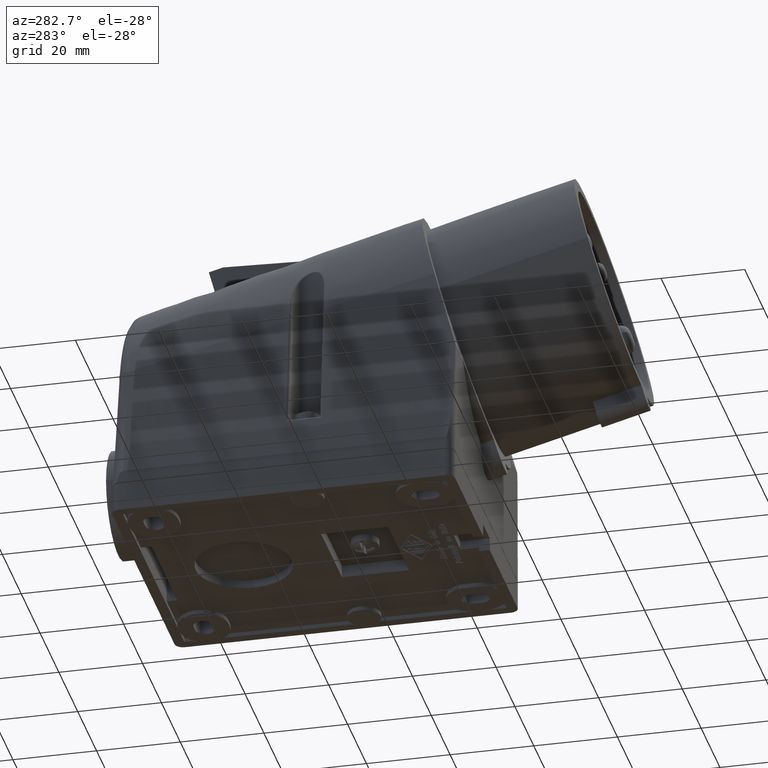
[diagram: clean part render]
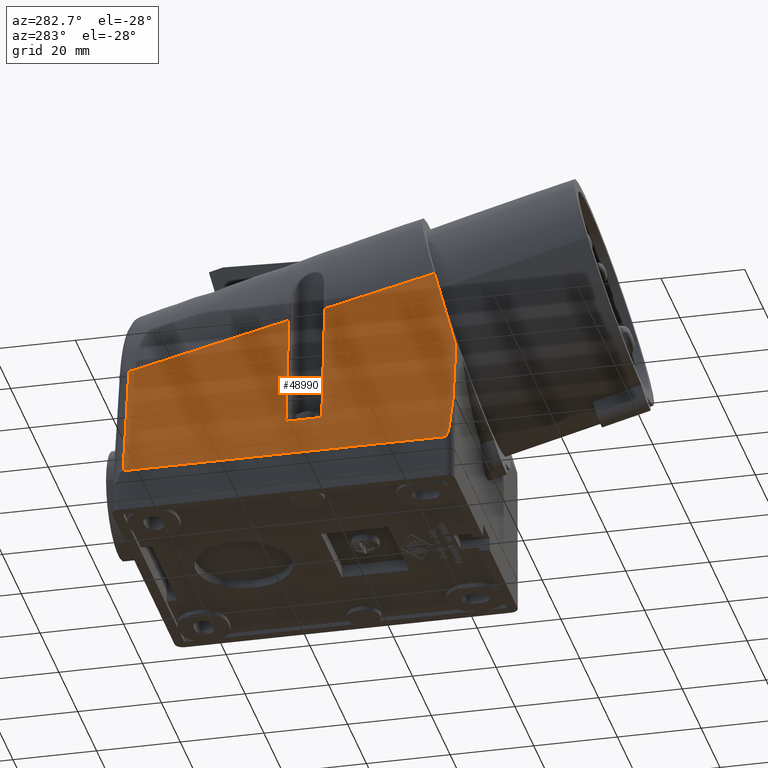
[diagram: same view with one face highlighted and labeled with its STEP entity id]
A machine part, auxiliary view. The second image highlights one B-rep face of the part: STEP entity #48990.
In plain terms, the highlighted face is a freeform B-spline surface patch.
Its self-contained STEP definition (entity closure, byte-faithful):
#13010=CARTESIAN_POINT('',(13.1169484670929,75.1429508882732,
48.6516298899985));
#13020=VERTEX_POINT('',#13010);
#13470=CARTESIAN_POINT('',(11.2818153625312,69.6903855437498,
28.3023789926475));
#13480=VERTEX_POINT('',#13470);
#13510=CARTESIAN_POINT('',(9.,62.9106335260837,3.));
#13520=CARTESIAN_POINT('',(10.0292371167732,65.9687128666311,
14.4129074724996));
#13530=CARTESIAN_POINT('',(11.0584742335465,69.0267922071784,
25.8258149449992));
#13540=CARTESIAN_POINT('',(12.0877113503197,72.0848715477258,
37.2387224174988));
#13550=CARTESIAN_POINT('',(13.1169484670929,75.1429508882732,
48.6516298899985));
#13560=(BOUNDED_CURVE() B_SPLINE_CURVE(4,(#13510,#13520,#13530,#13540,
#13550),.UNSPECIFIED.,.F.,.F.) B_SPLINE_CURVE_WITH_KNOTS((5,5),(70.,
117.441017741438),.UNSPECIFIED.) CURVE() GEOMETRIC_REPRESENTATION_ITEM()
 RATIONAL_B_SPLINE_CURVE((1.,1.,1.,1.,1.)) REPRESENTATION_ITEM(''));
#13570=EDGE_CURVE('',#13480,#13020,#13560,.T.);
#20510=CARTESIAN_POINT('',(13.1169484670929,75.1429508882732,
48.6516298899985));
#20520=CARTESIAN_POINT('',(13.2117672415879,99.9920957734321,
42.7809359734625));
#20530=CARTESIAN_POINT('',(13.3065860160829,124.841240658591,
36.9102420569265));
#20540=CARTESIAN_POINT('',(13.4014047905778,149.69038554375,
31.0395481403905));
#20550=(BOUNDED_CURVE() B_SPLINE_CURVE(3,(#20510,#20520,#20530,#20540),
.UNSPECIFIED.,.F.,.F.) B_SPLINE_CURVE_WITH_KNOTS((4,4),(1.,
77.1115129853379),.UNSPECIFIED.) CURVE() GEOMETRIC_REPRESENTATION_ITEM()
 RATIONAL_B_SPLINE_CURVE((1.,1.,1.,1.)) REPRESENTATION_ITEM(''));
#20560=CARTESIAN_POINT('',(13.2171575043675,101.404721295028,
42.4471984507306));
#20570=VERTEX_POINT('',#20560);
#20580=EDGE_CURVE('',#13020,#20570,#20550,.T.);
#23090=CARTESIAN_POINT('',(13.2499766037204,110.005618735077,
40.4152075507861));
#23100=VERTEX_POINT('',#23090);
#23130=CARTESIAN_POINT('',(13.1169484670929,75.1429508882732,
48.6516298899984));
#23140=CARTESIAN_POINT('',(13.2117672415879,99.9920957734321,
42.7809359734625));
#23150=CARTESIAN_POINT('',(13.3065860160829,124.841240658591,
36.9102420569265));
#23160=CARTESIAN_POINT('',(13.4014047905778,149.69038554375,
31.0395481403905));
#23170=(BOUNDED_CURVE() B_SPLINE_CURVE(3,(#23130,#23140,#23150,#23160),
.UNSPECIFIED.,.F.,.F.) B_SPLINE_CURVE_WITH_KNOTS((4,4),(1.,
77.1115129853379),.UNSPECIFIED.) CURVE() GEOMETRIC_REPRESENTATION_ITEM()
 RATIONAL_B_SPLINE_CURVE((1.,1.,1.,1.)) REPRESENTATION_ITEM(''));
#23180=CARTESIAN_POINT('',(13.3959867161082,148.270471415851,
31.3750076208347));
#23190=VERTEX_POINT('',#23180);
#23200=EDGE_CURVE('',#23100,#23190,#23170,.T.);
#44120=CARTESIAN_POINT('',(168.046432553668,69.6903855437498,
11.9469414497903));
#44130=DIRECTION('',(0.,1.,-0.));
#44140=DIRECTION('',(-1.,0.,0.));
#44150=AXIS2_PLACEMENT_3D('',#44120,#44130,#44140);
#44160=PLANE('',#44150);
#45360=CARTESIAN_POINT('',(9.,62.9106335260837,3.));
#45370=CARTESIAN_POINT('',(10.0292371167732,65.9687128666311,
14.4129074724996));
#45380=CARTESIAN_POINT('',(11.0584742335465,69.0267922071784,
25.8258149449992));
#45390=CARTESIAN_POINT('',(12.0877113503197,72.0848715477258,
37.2387224174988));
#45400=CARTESIAN_POINT('',(13.1169484670929,75.1429508882732,
48.6516298899984));
#45410=CARTESIAN_POINT('',(9.,91.8372175319723,3.));
#45420=CARTESIAN_POINT('',(10.052941810397,93.8759370923373,
12.9452339933656));
#45430=CARTESIAN_POINT('',(11.105883620794,95.9146566527022,
22.8904679867312));
#45440=CARTESIAN_POINT('',(12.1588254311909,97.9533762130671,
32.8357019800969));
#45450=CARTESIAN_POINT('',(13.2117672415879,99.9920957734321,
42.7809359734625));
#45460=CARTESIAN_POINT('',(9.,120.763801537861,3.00000000000001));
#45470=CARTESIAN_POINT('',(10.0766465040207,121.783161318044,
11.4775605142316));
#45480=CARTESIAN_POINT('',(11.1532930080414,122.802521098226,
19.9551210284632));
#45490=CARTESIAN_POINT('',(12.2299395120621,123.821880878408,
28.4326815426949));
#45500=CARTESIAN_POINT('',(13.3065860160829,124.841240658591,
36.9102420569265));
#45510=CARTESIAN_POINT('',(9.,182.165515888407,2.99999999999998));
#45520=CARTESIAN_POINT('',(10.1269638462397,181.02110693494,
8.36216784611324));
#45530=CARTESIAN_POINT('',(11.2539276924795,179.876697981474,
13.7243356922265));
#45540=CARTESIAN_POINT('',(12.3808915387193,178.732289028008,
19.0865035383396));
#45550=CARTESIAN_POINT('',(13.507855384959,177.587880074542,
24.4486713844529));
#45560=CARTESIAN_POINT('',(9.,214.640646233063,2.99999999999998));
#45570=CARTESIAN_POINT('',(10.1549774871289,214.001198138918,
6.62770637448787));
#45580=CARTESIAN_POINT('',(11.3126991132875,213.208451199593,
10.0855096850225));
#45590=CARTESIAN_POINT('',(12.4729875848228,212.233207117693,
13.3843870484662));
#45600=CARTESIAN_POINT('',(13.6355256903417,211.046421728185,
16.543978573091));
#45610=CARTESIAN_POINT('',(9.,247.11577657772,2.99999999999996));
#45620=CARTESIAN_POINT('',(10.1829911280181,246.981289342895,
4.8932449028625));
#45630=CARTESIAN_POINT('',(11.3714705340954,246.540204417713,
6.44668367781863));
#45640=CARTESIAN_POINT('',(12.5650836309264,245.734125207377,
7.68227055859274));
#45650=CARTESIAN_POINT('',(13.7631959957244,244.504963381828,
8.63928576172903));
#45660=(BOUNDED_SURFACE() B_SPLINE_SURFACE(4,3,((#45360,#45410,#45460,
#45510,#45560,#45610),(#45370,#45420,#45470,#45520,#45570,#45620),(
#45380,#45430,#45480,#45530,#45580,#45630),(#45390,#45440,#45490,#45540,
#45590,#45640),(#45400,#45450,#45500,#45550,#45600,#45650)),
.UNSPECIFIED.,.F.,.F.,.F.) B_SPLINE_SURFACE_WITH_KNOTS((5,5),(4,2,4),(
70.,117.441017741438),(1.,77.1115129853379,162.55994700799),
.UNSPECIFIED.) GEOMETRIC_REPRESENTATION_ITEM() RATIONAL_B_SPLINE_SURFACE
(((1.,1.,1.,1.,1.,1.),(1.,1.,1.,1.,1.,1.),(1.,1.,1.,1.,1.,1.),(1.,1.,1.,
1.,1.,1.),(1.,1.,1.,1.,1.,1.))) REPRESENTATION_ITEM('') SURFACE());
#45670=CARTESIAN_POINT('',(13.3959867161081,148.270471415851,
31.3750076208347));
#45680=CARTESIAN_POINT('',(13.3771345353187,148.271945181401,
31.2526761735191));
#45690=CARTESIAN_POINT('',(13.3582472348222,148.273165403463,
31.1301926508231));
#45700=CARTESIAN_POINT('',(12.9742789239599,148.30465403487,
28.638639043564));
#45710=CARTESIAN_POINT('',(12.6085964259826,148.335015412872,
26.269353258562));
#45720=CARTESIAN_POINT('',(11.8762309160192,148.396495542759,
21.5308900981883));
#45730=CARTESIAN_POINT('',(11.5095484415175,148.427614283566,
19.1617165716625));
#45740=CARTESIAN_POINT('',(10.7797395618731,148.490156977178,
14.4523274730381));
#45750=CARTESIAN_POINT('',(10.4166234271115,148.52157270372,
12.1121057828522));
#45760=CARTESIAN_POINT('',(9.87133702540012,148.56915524104,
8.60186279369063));
#45770=CARTESIAN_POINT('',(9.68947165574938,148.585092729939,
7.43178939230677));
#45780=CARTESIAN_POINT('',(9.41652699438179,148.60910861857,
5.67670236228185));
#45790=CARTESIAN_POINT('',(9.32552070423741,148.617132219912,
5.09167527988618));
#45800=CARTESIAN_POINT('',(9.18897535474765,148.629194424844,
4.21414023074397));
#45810=CARTESIAN_POINT('',(9.14345418820572,148.633219632821,
3.92162906473896));
#45820=CARTESIAN_POINT('',(9.07516354019031,148.639264071339,
3.48286361904154));
#45830=CARTESIAN_POINT('',(9.05239855185628,148.641279984711,
3.33660897067749));
#45840=CARTESIAN_POINT('',(9.02394034493802,148.643801260461,
3.15379011289883));
#45850=CARTESIAN_POINT('',(9.01824726969742,148.644305703142,
3.11721773625814));
#45860=CARTESIAN_POINT('',(9.00686900910318,148.645314010087,
3.04412487704148));
#45870=CARTESIAN_POINT('',(9.00118100519187,148.645817786263,
3.00758121481611));
#45880=CARTESIAN_POINT('',(8.98414254906837,148.647334229481,
2.89815661753258));
#45890=CARTESIAN_POINT('',(8.97279388414102,148.648342788055,
2.82533864168919));
#45900=CARTESIAN_POINT('',(8.91594750902398,148.653387887327,
2.46089987595847));
#45910=CARTESIAN_POINT('',(8.87031401214267,148.657416087925,
2.16934212608293));
#45920=CARTESIAN_POINT('',(8.77876736919753,148.665465440632,
1.58610043210767));
#45930=CARTESIAN_POINT('',(8.73285413053751,148.669486541805,
1.29441730064089));
#45940=CARTESIAN_POINT('',(8.64079630320044,148.677525620528,
0.710985173951132));
#45950=CARTESIAN_POINT('',(8.59464939540251,148.681543767226,
0.419222309241027));
#45960=CARTESIAN_POINT('',(8.54361233560349,148.685978193699,
0.0972046836502773));
#45970=CARTESIAN_POINT('',(8.5388166057993,148.686394784674,
0.0669525422168125));
#45980=CARTESIAN_POINT('',(8.5340198571094,148.686811374004,
0.0367003334339184));
#45990=B_SPLINE_CURVE_WITH_KNOTS('',3,(#45670,#45680,#45690,#45700,
#45710,#45720,#45730,#45740,#45750,#45760,#45770,#45780,#45790,#45800,
#45810,#45820,#45830,#45840,#45850,#45860,#45870,#45880,#45890,#45900,
#45910,#45920,#45930,#45940,#45950,#45960,#45970,#45980),.UNSPECIFIED.,
.F.,.F.,(4,2,2,2,2,2,2,2,2,2,2,2,2,2,2,4),(0.,0.370932338242532,
7.56424973885539,14.7576346102345,21.8634976009697,25.4164486433955,
27.1929287476784,28.0811698696494,28.5252905849976,28.6363204538176,
28.7472982026934,28.9689727505356,29.8558381380065,30.7429288936756,
31.630196082612,31.7221935308179),.UNSPECIFIED.);
#46000=CARTESIAN_POINT('',(9.,148.645923350407,2.99999915269815));
#46010=VERTEX_POINT('',#46000);
#46020=EDGE_CURVE('',#23190,#46010,#45990,.T.);
#46030=ORIENTED_EDGE('',*,*,#46020,.T.);
#46040=ORIENTED_EDGE('',*,*,#23200,.T.);
#46050=CARTESIAN_POINT('',(10.0556868609536,109.993804592281,
12.0033364402083));
#46060=CARTESIAN_POINT('',(10.1505703066064,109.994118187998,
12.8201648460535));
#46070=CARTESIAN_POINT('',(10.2452090477321,109.994432683646,
13.63702115246));
#46080=CARTESIAN_POINT('',(10.8040561875513,109.996299834886,
18.4734724175587));
#46090=CARTESIAN_POINT('',(11.262496507546,109.99787273946,
22.4937259600137));
#46100=CARTESIAN_POINT('',(11.9807331368638,110.000398821907,
28.8837870462764));
#46110=CARTESIAN_POINT('',(12.2447633412455,110.001341109843,
31.2531171300422));
#46120=CARTESIAN_POINT('',(12.6372839152752,110.002761528066,
34.8075007463759));
#46130=CARTESIAN_POINT('',(12.7675363707391,110.00323616206,
35.9923576363217));
#46140=CARTESIAN_POINT('',(12.9620153658447,110.003949630454,
37.7697413317139));
#46150=CARTESIAN_POINT('',(13.0266916827417,110.004187705773,
38.3622183511794));
#46160=CARTESIAN_POINT('',(13.1234789178746,110.004545168417,
39.250958589622));
#46170=CARTESIAN_POINT('',(13.1557034397327,110.00466438084,
39.5472093027344));
#46180=CARTESIAN_POINT('',(13.2039831221669,110.004843283115,
39.9915915599884));
#46190=CARTESIAN_POINT('',(13.2200668284689,110.00490293113,
40.1397199693672));
#46200=CARTESIAN_POINT('',(13.2381712968025,110.004970128537,
40.3065594113304));
#46210=CARTESIAN_POINT('',(13.2402008624625,110.004977662351,
40.3252640349639));
#46220=CARTESIAN_POINT('',(13.2447101332384,110.00499440265,
40.3668249554545));
#46230=CARTESIAN_POINT('',(13.2474001773748,110.005594787797,
40.3914606514448));
#46240=CARTESIAN_POINT('',(13.2499766037204,110.005618735077,
40.4152075507861));
#46250=B_SPLINE_CURVE_WITH_KNOTS('',3,(#46050,#46060,#46070,#46080,
#46090,#46100,#46110,#46120,#46130,#46140,#46150,#46160,#46170,#46180,
#46190,#46200,#46210,#46220,#46230,#46240),.UNSPECIFIED.,.F.,.F.,(4,2,2,
2,2,2,2,2,2,4),(10.5469092344,13.0140131520096,25.1536652702861,
32.3061199467991,35.8823448587844,37.6704567348227,38.5645125100333,
39.0115403457416,39.0680037171682,39.136980934104),.UNSPECIFIED.);
#46260=CARTESIAN_POINT('',(10.0619994585926,109.993825458332,
12.057683201264));
#46270=VERTEX_POINT('',#46260);
#46280=EDGE_CURVE('',#46270,#23100,#46250,.T.);
#46290=ORIENTED_EDGE('',*,*,#46280,.T.);
#46300=CARTESIAN_POINT('',(10.0018140354143,100.893513317194,
12.0544159059759));
#46310=CARTESIAN_POINT('',(10.011856012138,102.493681611858,
12.0549606658341));
#46320=CARTESIAN_POINT('',(10.0221681373735,104.093849141041,
12.0555202631438));
#46330=CARTESIAN_POINT('',(10.0433784239101,107.293949434471,
12.0566717235053));
#46340=CARTESIAN_POINT('',(10.0542764016675,108.893881597248,
12.0572635759623));
#46350=CARTESIAN_POINT('',(10.0654948245247,110.493813132998,
12.0578731189423));
#46360=B_SPLINE_CURVE_WITH_KNOTS('',3,(#46300,#46310,#46320,#46330,
#46340,#46350),.UNSPECIFIED.,.F.,.F.,(4,2,4),(36.9352797427653,
41.7357960100433,46.5356102208855),.UNSPECIFIED.);
#46370=CARTESIAN_POINT('',(10.0049605794118,101.393503397559,
12.0545866065389));
#46380=VERTEX_POINT('',#46370);
#46390=EDGE_CURVE('',#46380,#46270,#46360,.T.);
#46400=ORIENTED_EDGE('',*,*,#46390,.T.);
#46410=CARTESIAN_POINT('',(13.2171575043675,101.404721295028,
42.4471984507306));
#46420=CARTESIAN_POINT('',(13.2148184870513,101.404701322307,
42.4241211132622));
#46430=CARTESIAN_POINT('',(13.2123863331456,101.40417072931,
42.4002668549266));
#46440=CARTESIAN_POINT('',(13.2096400788876,101.404161143118,
42.3731732569536));
#46450=CARTESIAN_POINT('',(13.2091538331779,101.404159445842,
42.3683762262979));
#46460=CARTESIAN_POINT('',(13.2046255288026,101.404143639779,
42.3237034335332));
#46470=CARTESIAN_POINT('',(13.2005828424125,101.404129531152,
42.2838284187078));
#46480=CARTESIAN_POINT('',(13.180365875986,101.404058987909,
42.0844536664845));
#46490=CARTESIAN_POINT('',(13.1641810044886,101.404002552557,
41.924955013012));
#46500=CARTESIAN_POINT('',(13.1155925525505,101.403833245246,
41.4464623605186));
#46510=CARTESIAN_POINT('',(13.0831551509878,101.403720372095,
41.127471830614));
#46520=CARTESIAN_POINT('',(12.9857081738964,101.403381756179,
40.1705135115101));
#46530=CARTESIAN_POINT('',(12.9205638840732,101.403156017183,
39.5325595694351));
#46540=CARTESIAN_POINT('',(12.7245965155805,101.402478881675,
37.6187506493402));
#46550=CARTESIAN_POINT('',(12.5932391737333,101.40202756791,
36.3429509584145));
#46560=CARTESIAN_POINT('',(12.1970661349291,101.400674476721,
32.515761671072));
#46570=CARTESIAN_POINT('',(11.93015035581,101.399773560067,
29.964591671958));
#46580=CARTESIAN_POINT('',(11.2175914905269,101.397399048363,
23.2229495863138));
#46590=CARTESIAN_POINT('',(10.7673608497758,101.395929672617,
19.0329651480681));
#46600=CARTESIAN_POINT('',(10.2069715731256,101.394142612048,
13.896770400193));
#46610=CARTESIAN_POINT('',(10.1033043683481,101.393813735511,
12.949859764706));
#46620=CARTESIAN_POINT('',(9.99929278908751,101.393485510083,
12.0029864010499));
#46630=B_SPLINE_CURVE_WITH_KNOTS('',3,(#46410,#46420,#46430,#46440,
#46450,#46460,#46470,#46480,#46490,#46500,#46510,#46520,#46530,#46540,
#46550,#46560,#46570,#46580,#46590,#46600,#46610,#46620),.UNSPECIFIED.,
.F.,.F.,(4,2,2,2,2,2,2,2,2,2,4),(0.,0.0672498735635783,
0.0817177760616346,0.201964792211627,0.682952923148092,1.64492928308779,
3.56888233758463,7.41678974366276,15.1126103246312,27.7557453558695,
30.6136311450081),.UNSPECIFIED.);
#46640=EDGE_CURVE('',#20570,#46380,#46630,.T.);
#46650=ORIENTED_EDGE('',*,*,#46640,.T.);
#46660=ORIENTED_EDGE('',*,*,#20580,.T.);
#46670=ORIENTED_EDGE('',*,*,#13570,.T.);
#46680=CARTESIAN_POINT('',(11.2818153625312,69.6903855437498,
28.3023789926475));
#46690=CARTESIAN_POINT('',(11.2584472835678,69.6903855437498,
28.0332091938841));
#46700=CARTESIAN_POINT('',(11.2350500091479,69.6903855437498,
27.7640419265648));
#46710=CARTESIAN_POINT('',(11.2116235854598,69.6903855437498,
27.4948771962114));
#46720=CARTESIAN_POINT('',(11.1881971617718,69.6903855437498,
27.225712465858));
#46730=CARTESIAN_POINT('',(11.1647415888161,69.6903855437498,
26.9565502724707));
#46740=CARTESIAN_POINT('',(11.1412569132697,69.6903855437498,
26.6873906215286));
#46750=CARTESIAN_POINT('',(11.1177722377233,69.6903855437498,
26.4182309705866));
#46760=CARTESIAN_POINT('',(11.0942584590375,69.6903855437497,
26.1490738557966));
#46770=CARTESIAN_POINT('',(11.0707156243624,69.6903855437497,
25.8799192825164));
#46780=CARTESIAN_POINT('',(11.0471727896872,69.6903855437497,
25.6107647092362));
#46790=CARTESIAN_POINT('',(11.0236008990231,69.6903855437498,
25.3416126774658));
#46800=CARTESIAN_POINT('',(11.,69.6903855437498,25.0724631925209));
#46810=B_SPLINE_CURVE_WITH_KNOTS('',3,(#46680,#46690,#46700,#46710,
#46720,#46730,#46740,#46750,#46760,#46770,#46780,#46790,#46800),
.UNSPECIFIED.,.F.,.F.,(4,3,3,3,4),(0.,0.810546750323056,1.62109350536637
,2.43164025950334,3.2421870117235),.UNSPECIFIED.);
#46820=SURFACE_CURVE('',#46810,(#44160,#45660),.CURVE_3D.);
#46830=CARTESIAN_POINT('',(11.,69.6903855437497,25.0724631925209));
#46840=VERTEX_POINT('',#46830);
#46850=EDGE_CURVE('',#13480,#46840,#46820,.T.);
#46860=ORIENTED_EDGE('',*,*,#46850,.F.);
#46870=CARTESIAN_POINT('',(11.,71.6903855437498,-9.29175068445971));
#46880=DIRECTION('',(0.,0.,1.));
#46890=DIRECTION('',(-0.,-1.,0.));
#46900=AXIS2_PLACEMENT_3D('',#46870,#46880,#46890);
#46910=CYLINDRICAL_SURFACE('',#46900,2.);
#46920=CARTESIAN_POINT('',(11.,69.6903855437498,25.0724631925209));
#46930=CARTESIAN_POINT('',(10.9591201239844,69.6903855437498,
24.606260715937));
#46940=CARTESIAN_POINT('',(10.9181643184043,69.6916376991778,
24.1400356564961));
#46950=CARTESIAN_POINT('',(10.8771320556774,69.6941632444409,
23.6738065318595));
#46960=CARTESIAN_POINT('',(10.8360997890456,69.6966887899444,
23.207577362852));
#46970=CARTESIAN_POINT('',(10.7949910588635,69.7004876325789,
22.7413440252412));
#46980=CARTESIAN_POINT('',(10.7538053338574,69.7055963392338,
22.2751238407823));
#46990=CARTESIAN_POINT('',(10.7126196053937,69.7107050463176,
21.8089036171837));
#47000=CARTESIAN_POINT('',(10.6713568730544,69.7171234544343,
21.342696415882));
#47010=CARTESIAN_POINT('',(10.6300165823098,69.7249053808801,
20.8765185843984));
#47020=CARTESIAN_POINT('',(10.5886762891279,69.7326873077846,
20.4103407254296));
#47030=CARTESIAN_POINT('',(10.5472584245541,69.7418324965528,
19.9441920620296));
#47040=CARTESIAN_POINT('',(10.505762411493,69.7524151605636,
19.4780883973551));
#47050=CARTESIAN_POINT('',(10.4642663978357,69.7629978247263,
19.0119847259843));
#47060=CARTESIAN_POINT('',(10.4226922166823,69.7750175732891,
18.5459258109551));
#47070=CARTESIAN_POINT('',(10.3810392960451,69.7885738688041,
18.0799276473188));
#47080=CARTESIAN_POINT('',(10.3393863778749,69.8021301635161,
17.6139295112817));
#47090=CARTESIAN_POINT('',(10.2976546916556,69.8172224083889,
17.1479917752269));
#47100=CARTESIAN_POINT('',(10.25584373737,69.8339827165626,
16.6821318288689));
#47110=CARTESIAN_POINT('',(10.2349382591803,69.8423628710691,
16.4492018440244));
#47120=CARTESIAN_POINT('',(10.2140129621865,69.8511606049538,
16.2162912988322));
#47130=CARTESIAN_POINT('',(10.1930677965995,69.8603963582311,
15.9834026046762));
#47140=CARTESIAN_POINT('',(10.1721226316138,69.8696321112434,
15.7505139172043));
#47150=CARTESIAN_POINT('',(10.1511575964902,69.8793058470731,
15.517647062301));
#47160=CARTESIAN_POINT('',(10.1301726592936,69.8894412366265,
15.2848047375714));
#47170=CARTESIAN_POINT('',(10.1091877228623,69.8995766258102,
15.0519624213329));
#47180=CARTESIAN_POINT('',(10.088182882145,69.9101736220459,
14.8191446092531));
#47190=CARTESIAN_POINT('',(10.067158130455,69.9212597578251,
14.5863543876911));
#47200=CARTESIAN_POINT('',(10.0461333798274,69.932345893044,
14.353564177893));
#47210=CARTESIAN_POINT('',(10.0250887153653,69.9439211073395,
14.1208015252471));
#47220=CARTESIAN_POINT('',(10.0040241660382,69.9560176075371,
13.8880700434077));
#47230=CARTESIAN_POINT('',(9.98295962043802,69.9681141055945,
13.6553386027443));
#47240=CARTESIAN_POINT('',(9.96187455230466,69.9807321778957,
13.4226312878735));
#47250=CARTESIAN_POINT('',(9.94076933336316,69.9939096686321,
13.1899556913703));
#47260=CARTESIAN_POINT('',(9.91966411396048,70.0070871596565,
12.9572800897826));
#47270=CARTESIAN_POINT('',(9.89853873912632,70.0208239619122,
12.7246361528347));
#47280=CARTESIAN_POINT('',(9.87739358492334,70.0351650639257,
12.4920316896513));
#47290=CARTESIAN_POINT('',(9.85624843077698,70.0495061659009,
12.2594272270909));
#47300=CARTESIAN_POINT('',(9.83508349035903,70.0644514216567,
12.026862159057));
#47310=CARTESIAN_POINT('',(9.81389916645372,70.0800548905419,
11.7943448032265));
#47320=CARTESIAN_POINT('',(9.79271484353383,70.0956583587013,
11.5618274582118));
#47330=CARTESIAN_POINT('',(9.77151112685329,70.1119198365448,
11.3293577086368));
#47340=CARTESIAN_POINT('',(9.75028848421091,70.128905115661,
11.0969448560684));
#47350=CARTESIAN_POINT('',(9.72906594939935,70.1458903084762,
10.864533184374));
#47360=CARTESIAN_POINT('',(9.70782424132478,70.1635991626565,
10.632175684964));
#47370=CARTESIAN_POINT('',(9.68656289784694,70.182114023536,
10.3998718850983));
#47380=CARTESIAN_POINT('',(9.6653017021024,70.2006287557661,
10.1675696993831));
#47390=CARTESIAN_POINT('',(9.64402150480482,70.2199485239869,
9.93532814342213));
#47400=CARTESIAN_POINT('',(9.6227237870964,70.2401751337161,
9.70316837376839));
#47410=CARTESIAN_POINT('',(9.60142606999955,70.2604017428645,
9.47100861078115));
#47420=CARTESIAN_POINT('',(9.58011079651486,70.2815345277094,
9.23893023235822));
#47430=CARTESIAN_POINT('',(9.5587796109677,70.3037046899706,
9.0069566547908));
#47440=CARTESIAN_POINT('',(9.54811401617871,70.3147897731959,
8.89096984408979));
#47450=CARTESIAN_POINT('',(9.53744444224106,70.3261347236316,
8.77500922973857));
#47460=CARTESIAN_POINT('',(9.52677112450872,70.3377596973241,
8.65907812145507));
#47470=CARTESIAN_POINT('',(9.51609780724709,70.349384670504,
8.54314701828432));
#47480=CARTESIAN_POINT('',(9.50542074355256,70.361289624278,
8.42724539207784));
#47490=CARTESIAN_POINT('',(9.49474020545409,70.3734979437916,
8.3113769981896));
#47500=CARTESIAN_POINT('',(9.48405979356721,70.3857061190398,
8.19550997351476));
#47510=CARTESIAN_POINT('',(9.47337549937141,70.3982180479931,
8.07967175154856));
#47520=CARTESIAN_POINT('',(9.46268715327519,70.4110618117355,
7.96386138122593));
#47530=CARTESIAN_POINT('',(9.45199888480098,70.4239054822025,
7.8480518519533));
#47540=CARTESIAN_POINT('',(9.44130689895932,70.4370805187109,
7.73227380144499));
#47550=CARTESIAN_POINT('',(9.43061199803638,70.4506189127693,
7.61653686260487));
#47560=CARTESIAN_POINT('',(9.41991709612145,70.4641573080834,
7.50079991302976));
#47570=CARTESIAN_POINT('',(9.40921927332176,70.4780589571982,
7.38510401131636));
#47580=CARTESIAN_POINT('',(9.39851936215021,70.4923622691043,
7.26945917312185));
#47590=CARTESIAN_POINT('',(9.38781945048791,70.5066655816664,
7.15381432962334));
#47600=CARTESIAN_POINT('',(9.37711744109529,70.5213704130774,
7.03822044729535));
#47610=CARTESIAN_POINT('',(9.36641423210625,70.5365235333971,
6.92268832405827));
#47620=CARTESIAN_POINT('',(9.3557110238024,70.5516766527469,
6.80715620821718));
#47630=CARTESIAN_POINT('',(9.34500660099763,70.5672778557535,
6.69168568916686));
#47640=CARTESIAN_POINT('',(9.33430199216816,70.5833850258162,
6.5762890658515));
#47650=CARTESIAN_POINT('',(9.32359738622386,70.5994921915376,
6.46089247363849));
#47660=CARTESIAN_POINT('',(9.31289257035552,70.6161050220481,
6.34556951786667));
#47670=CARTESIAN_POINT('',(9.3021888137279,70.6332965334155,
6.23033521163191));
#47680=CARTESIAN_POINT('',(9.29148466031789,70.6504886820628,
6.11509663372448));
#47690=CARTESIAN_POINT('',(9.28078332498681,70.6682559950904,
5.99996561849685));
#47700=CARTESIAN_POINT('',(9.27008114554083,70.686701949689,
5.88490431712391));
#47710=CARTESIAN_POINT('',(9.25937892621716,70.7051479730196,
5.76984258701794));
#47720=CARTESIAN_POINT('',(9.24867667068975,70.7242707199508,
5.65485929458583));
#47730=CARTESIAN_POINT('',(9.23797947891439,70.7441912279387,
5.54001102552834));
#47740=CARTESIAN_POINT('',(9.23263087516905,70.7541514965653,
5.48258680663742));
#47750=CARTESIAN_POINT('',(9.22728353052358,70.7643117736299,
5.42519627089844));
#47760=CARTESIAN_POINT('',(9.22193810219883,70.774691333007,
5.36784671151656));
#47770=CARTESIAN_POINT('',(9.21659267313299,70.7850708938231,
5.31049714418392));
#47780=CARTESIAN_POINT('',(9.21124915584945,70.7956696837361,
5.25318850429828));
#47790=CARTESIAN_POINT('',(9.2059082435598,70.8065106829954,
5.19592848093228));
#47800=CARTESIAN_POINT('',(9.2005673309738,70.8173516828562,
5.13866845438914));
#47810=CARTESIAN_POINT('',(9.19522901639176,70.8284348206323,
5.08145696919415));
#47820=CARTESIAN_POINT('',(9.18989406033745,70.8397878202644,
5.02430244967504));
#47830=CARTESIAN_POINT('',(9.18455910486685,70.8511408186543,
4.96714793640935));
#47840=CARTESIAN_POINT('',(9.17922749721356,70.8627635807805,
4.91005027384839));
#47850=CARTESIAN_POINT('',(9.17390011706082,70.8746900015714,
4.85301918071724));
#47860=CARTESIAN_POINT('',(9.16857273901259,70.886616417651,
4.79598811011536));
#47870=CARTESIAN_POINT('',(9.16324957191639,70.8988463539957,
4.7390234315922));
#47880=CARTESIAN_POINT('',(9.15793169738546,70.9114218934407,
4.68213704778123));
#47890=CARTESIAN_POINT('',(9.15261382745645,70.9239974220033,
4.62525071319794));
#47900=CARTESIAN_POINT('',(9.14730122401972,70.9369183523379,
4.56844239430828));
#47910=CARTESIAN_POINT('',(9.14199530158287,70.9502378958714,
4.51172758117258));
#47920=CARTESIAN_POINT('',(9.13668946436051,70.9635572254895,
4.45501367889148));
#47930=CARTESIAN_POINT('',(9.13139060580168,70.9772737300533,
4.39839645096151));
#47940=CARTESIAN_POINT('',(9.12609625964391,70.9914686875505,
4.34185000212348));
#47950=CARTESIAN_POINT('',(9.12080240833293,71.0056623182871,
4.28530883851398));
#47960=CARTESIAN_POINT('',(9.11551538014793,71.0203278756035,
4.22886314951323));
#47970=CARTESIAN_POINT('',(9.11024039110962,71.035550739691,
4.17256909761385));
#47980=CARTESIAN_POINT('',(9.10760288867363,71.0431621945816,
4.14442198717665));
#47990=CARTESIAN_POINT('',(9.10496839007419,71.0509134147274,
4.11631272173352));
#48000=CARTESIAN_POINT('',(9.10233758003742,71.0588181761141,
4.08824866695643));
#48010=CARTESIAN_POINT('',(9.09970676944033,71.0667229391845,
4.06018460620218));
#48020=CARTESIAN_POINT('',(9.09707964225822,71.074781209867,
4.03216570117331));
#48030=CARTESIAN_POINT('',(9.09445693447874,71.0830095272292,
4.00419986270357));
#48040=CARTESIAN_POINT('',(9.09183422669734,71.0912378445973,
3.97623402421336));
#48050=CARTESIAN_POINT('',(9.08921593047269,71.0996361654154,
3.94832116861927));
#48060=CARTESIAN_POINT('',(9.08660287112756,71.1082245460668,
3.92047015824964));
#48070=CARTESIAN_POINT('',(9.08398981280031,71.1168129233728,
3.89261915872886));
#48080=CARTESIAN_POINT('',(9.0813819794122,71.1255913040283,
3.8648298772133));
#48090=CARTESIAN_POINT('',(9.07878034639431,71.1345842819669,
3.837112775104));
#48100=CARTESIAN_POINT('',(9.076178716091,71.1435772505221,
3.80939570191497));
#48110=CARTESIAN_POINT('',(9.07358326781235,71.1527847412773,
3.7817506128151));
#48120=CARTESIAN_POINT('',(9.07099522189832,71.1622373012449,
3.75419057711063));
#48130=CARTESIAN_POINT('',(9.06840718141779,71.1716898413674,
3.72663059926727));
#48140=CARTESIAN_POINT('',(9.0658265145746,71.1813873491043,
3.69915536918153));
#48150=CARTESIAN_POINT('',(9.06325483398197,71.1913683477477,
3.67178213047668));
#48160=CARTESIAN_POINT('',(9.06068342930135,71.2013482755437,
3.64441182860825));
#48170=CARTESIAN_POINT('',(9.05811750195192,71.211625096974,
3.61710617220661));
#48180=CARTESIAN_POINT('',(9.05556190579538,71.2222397354741,
3.58991692446703));
#48190=CARTESIAN_POINT('',(9.05300631187538,71.2328543646848,
3.56272770052229));
#48200=CARTESIAN_POINT('',(9.05046103982059,71.2438063513102,
3.53565478622604));
#48210=CARTESIAN_POINT('',(9.04793132440902,71.255152404182,
3.50875393580228));
#48220=CARTESIAN_POINT('',(9.04524274424703,71.2672109829962,
3.48016372661931));
#48230=CARTESIAN_POINT('',(9.04257157097288,71.2797139526074,
3.45176611770261));
#48240=CARTESIAN_POINT('',(9.03992496818406,71.2927602557529,
3.42363731407118));
#48250=CARTESIAN_POINT('',(9.0386016548382,71.2992834662397,
3.40957278523234));
#48260=CARTESIAN_POINT('',(9.03728447872972,71.3059431993464,
3.39557539933097));
#48270=CARTESIAN_POINT('',(9.03597451317515,71.3127562452253,
3.38165656420141));
#48280=CARTESIAN_POINT('',(9.03466454988916,71.3195692793053,
3.36773775317631));
#48290=CARTESIAN_POINT('',(9.03336177936211,71.3265356175964,
3.3538973040092));
#48300=CARTESIAN_POINT('',(9.03206751288318,71.3336759613853,
3.34014914609363));
#48310=CARTESIAN_POINT('',(9.03077325122419,71.3408162785831,
3.32640103937705));
#48320=CARTESIAN_POINT('',(9.02948746636531,71.3481306060817,
3.31274493475472));
#48330=CARTESIAN_POINT('',(9.02821184900731,71.3556446176519,
3.29919878248649));
#48340=CARTESIAN_POINT('',(9.02693658962272,71.3631565205832,
3.28565643164216));
#48350=CARTESIAN_POINT('',(9.02567049841593,71.3708732483694,
3.27221341817095));
#48360=CARTESIAN_POINT('',(9.02441378093066,71.3788424632239,
3.25887192971197));
#48370=CARTESIAN_POINT('',(9.0231574449892,71.3868092585971,
3.24553449177533));
#48380=CARTESIAN_POINT('',(9.0219121570839,71.3950181846007,
3.23231635781164));
#48390=CARTESIAN_POINT('',(9.02068328734595,71.4034964519145,
3.21927450594701));
#48400=CARTESIAN_POINT('',(9.01945441453057,71.4119747404603,
3.20623262142195));
#48410=CARTESIAN_POINT('',(9.01824187719416,71.4207224325735,
3.19336614188274));
#48420=CARTESIAN_POINT('',(9.01705154144698,71.4297796905199,
3.1807372530021));
#48430=CARTESIAN_POINT('',(9.01631732860411,71.4353663118754,
3.17294760841716));
#48440=CARTESIAN_POINT('',(9.01559155160217,71.4410711262206,
3.16524824006821));
#48450=CARTESIAN_POINT('',(9.01487578192575,71.4469069228671,
3.15765579673513));
#48460=CARTESIAN_POINT('',(9.01416001454973,71.4527427007579,
3.15006337780337));
#48470=CARTESIAN_POINT('',(9.01345423178919,71.4587095417964,
3.14257764320691));
#48480=CARTESIAN_POINT('',(9.01276029248378,71.4648232577312,
3.13521827882042));
#48490=CARTESIAN_POINT('',(9.01206635856181,71.470936926237,
3.12785897152633));
#48500=CARTESIAN_POINT('',(9.01138423437193,71.477197627121,
3.12062567713551));
#48510=CARTESIAN_POINT('',(9.01071624022741,71.4836245147693,
3.11354296175905));
#48520=CARTESIAN_POINT('',(9.01004865418079,71.4900474760369,
3.10646457342848));
#48530=CARTESIAN_POINT('',(9.00939372916122,71.4966499560826,
3.09952118757495));
#48540=CARTESIAN_POINT('',(9.00875432648883,71.5034613138488,
3.09274309876519));
#48550=CARTESIAN_POINT('',(9.00811514015312,71.5102703670476,
3.08596730326657));
#48560=CARTESIAN_POINT('',(9.00749242942573,71.5172787164208,
3.0793669118263));
#48570=CARTESIAN_POINT('',(9.00689203901961,71.524492036067,
3.07300380459249));
#48580=CARTESIAN_POINT('',(9.00629164926838,71.531705347845,
3.06664070429934));
#48590=CARTESIAN_POINT('',(9.00571353576538,71.5391239351449,
3.06051442139682));
#48600=CARTESIAN_POINT('',(9.00516390963882,71.5467576474068,
3.05469066958817));
#48610=CARTESIAN_POINT('',(9.00461428957893,71.5543912754093,
3.0488669820609));
#48620=CARTESIAN_POINT('',(9.00409308733063,71.5622407110714,
3.04334508911862));
#48630=CARTESIAN_POINT('',(9.00360721937926,71.5703194557584,
3.03819812333628));
#48640=CARTESIAN_POINT('',(9.00312170014505,71.5783924021685,
3.03305485163438));
#48650=CARTESIAN_POINT('',(9.00267015904112,71.5867163453976,
3.02827214170614));
#48660=CARTESIAN_POINT('',(9.0022617315892,71.5952971063489,
3.02394657404285));
#48670=CARTESIAN_POINT('',(9.0019109155141,71.602667494564,
3.02023115613178));
#48680=CARTESIAN_POINT('',(9.0015926545871,71.6102147000249,
3.01686091673864));
#48690=CARTESIAN_POINT('',(9.00131363838709,71.6179091482641,
3.01390653889024));
#48700=CARTESIAN_POINT('',(9.0010347568838,71.6255998819629,
3.01095358728524));
#48710=CARTESIAN_POINT('',(9.00079467959761,71.6334478864351,
3.00841183175807));
#48720=CARTESIAN_POINT('',(9.00059916279843,71.6414336061205,
3.00634202972503));
#48730=CARTESIAN_POINT('',(9.0004036958703,71.6494172888648,
3.00427275564251));
#48740=CARTESIAN_POINT('',(9.00025350841971,71.6575057603915,
3.00268304477627));
#48750=CARTESIAN_POINT('',(9.00015238375736,71.6656972508022,
3.00161273216806));
#48760=CARTESIAN_POINT('',(9.00010185105773,71.669790595738,
3.00107788948682));
#48770=CARTESIAN_POINT('',(9.00006367751144,71.6739030416436,
3.00067388510722));
#48780=CARTESIAN_POINT('',(9.0000382143546,71.6780220507933,
3.00040440861163));
#48790=CARTESIAN_POINT('',(9.00001275109807,71.6821410760711,
3.00013493106089));
#48800=CARTESIAN_POINT('',(9.,71.6862663456467,2.99999999999997));
#48810=CARTESIAN_POINT('',(9.,71.6903855437497,2.99999999999997));
#48820=B_SPLINE_CURVE_WITH_KNOTS('',3,(#46920,#46930,#46940,#46950,
#46960,#46970,#46980,#46990,#47000,#47010,#47020,#47030,#47040,#47050,
#47060,#47070,#47080,#47090,#47100,#47110,#47120,#47130,#47140,#47150,
#47160,#47170,#47180,#47190,#47200,#47210,#47220,#47230,#47240,#47250,
#47260,#47270,#47280,#47290,#47300,#47310,#47320,#47330,#47340,#47350,
#47360,#47370,#47380,#47390,#47400,#47410,#47420,#47430,#47440,#47450,
#47460,#47470,#47480,#47490,#47500,#47510,#47520,#47530,#47540,#47550,
#47560,#47570,#47580,#47590,#47600,#47610,#47620,#47630,#47640,#47650,
#47660,#47670,#47680,#47690,#47700,#47710,#47720,#47730,#47740,#47750,
#47760,#47770,#47780,#47790,#47800,#47810,#47820,#47830,#47840,#47850,
#47860,#47870,#47880,#47890,#47900,#47910,#47920,#47930,#47940,#47950,
#47960,#47970,#47980,#47990,#48000,#48010,#48020,#48030,#48040,#48050,
#48060,#48070,#48080,#48090,#48100,#48110,#48120,#48130,#48140,#48150,
#48160,#48170,#48180,#48190,#48200,#48210,#48220,#48230,#48240,#48250,
#48260,#48270,#48280,#48290,#48300,#48310,#48320,#48330,#48340,#48350,
#48360,#48370,#48380,#48390,#48400,#48410,#48420,#48430,#48440,#48450,
#48460,#48470,#48480,#48490,#48500,#48510,#48520,#48530,#48540,#48550,
#48560,#48570,#48580,#48590,#48600,#48610,#48620,#48630,#48640,#48650,
#48660,#48670,#48680,#48690,#48700,#48710,#48720,#48730,#48740,#48750,
#48760,#48770,#48780,#48790,#48800,#48810),.UNSPECIFIED.,.F.,.F.,(4,3,3,
3,3,3,3,3,3,3,3,3,3,3,3,3,3,3,3,3,3,3,3,3,3,3,3,3,3,3,3,3,3,3,3,3,3,3,3,
3,3,3,3,3,3,3,3,3,3,3,3,3,3,3,3,3,3,3,3,3,3,3,3,4),(0.,1.40404987707508,
2.80820744946471,4.21241489001973,5.61662597828726,7.02080668219249,
8.42493515691435,9.12697616670462,9.82900109002839,10.5310102221151,
11.2330043819466,11.935002608887,12.6370121713492,13.3390198858465,
14.0410176002416,14.7430180487585,15.4450469095614,16.1470714673301,
16.4980757146916,16.8490736226059,17.2000805337512,17.551119373474,
17.9021689608872,18.2532124475926,18.6042399934015,18.9552490896581,
19.3062572746353,19.6573820115404,19.8329618202846,20.0085336606212,
20.1840885565559,20.3596225553929,20.5351368209912,20.7106374603046,
20.886170204303,21.0618161576827,21.1496445857249,21.2374603776898,
21.325257040796,21.4130329895709,21.5007915537936,21.5885407381544,
21.6763727402024,21.7642895444477,21.8576928842917,21.9043609468242,
21.9510071393764,21.9976392727281,22.0443190929015,22.0911160364465,
22.1379081130574,22.1667335452511,22.1955261053523,22.2242944251657,
22.2531069489616,22.2820145727241,22.3109017213499,22.3397128461281,
22.368513865983,22.3932832632312,22.4180176072976,22.4427577892316,
22.4551443781157,22.4675167620786),.UNSPECIFIED.);
#48830=SURFACE_CURVE('',#48820,(#45660,#46910),.CURVE_3D.);
#48840=CARTESIAN_POINT('',(9.,71.6903855437498,3.00000000000001));
#48850=VERTEX_POINT('',#48840);
#48860=EDGE_CURVE('',#46840,#48850,#48830,.T.);
#48870=ORIENTED_EDGE('',*,*,#48860,.F.);
#48880=CARTESIAN_POINT('',(8.99999999999999,62.9106335260836,
2.99999999999994));
#48890=CARTESIAN_POINT('',(8.99999999999999,91.8372175319723,
2.99999999999996));
#48900=CARTESIAN_POINT('',(8.99999999999999,120.763801537861,
2.99999999999996));
#48910=CARTESIAN_POINT('',(8.99999999999999,182.165515888407,
2.99999999999995));
#48920=CARTESIAN_POINT('',(8.99999999999999,214.640646233063,
2.99999999999995));
#48930=CARTESIAN_POINT('',(8.99999999999999,247.11577657772,
2.99999999999996));
#48940=(BOUNDED_CURVE() B_SPLINE_CURVE(3,(#48880,#48890,#48900,#48910,
#48920,#48930),.UNSPECIFIED.,.F.,.F.) B_SPLINE_CURVE_WITH_KNOTS((4,2,4),
(1.,77.1115129853379,162.55994700799),.UNSPECIFIED.) CURVE() 
GEOMETRIC_REPRESENTATION_ITEM() RATIONAL_B_SPLINE_CURVE((1.,1.,1.,1.,1.,
1.)) REPRESENTATION_ITEM(''));
#48950=EDGE_CURVE('',#48850,#46010,#48940,.T.);
#48960=ORIENTED_EDGE('',*,*,#48950,.F.);
#48970=EDGE_LOOP('',(#48960,#48870,#46860,#46670,#46660,#46650,#46400,
#46290,#46040,#46030));
#48980=FACE_OUTER_BOUND('',#48970,.T.);
#48990=ADVANCED_FACE('',(#48980),#45660,.T.);